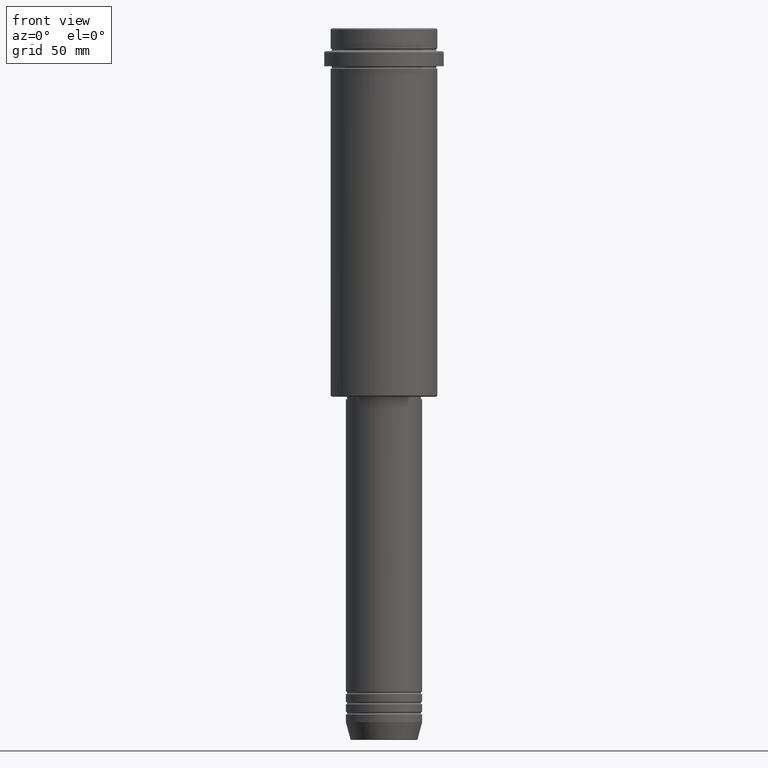
[diagram: clean part render]
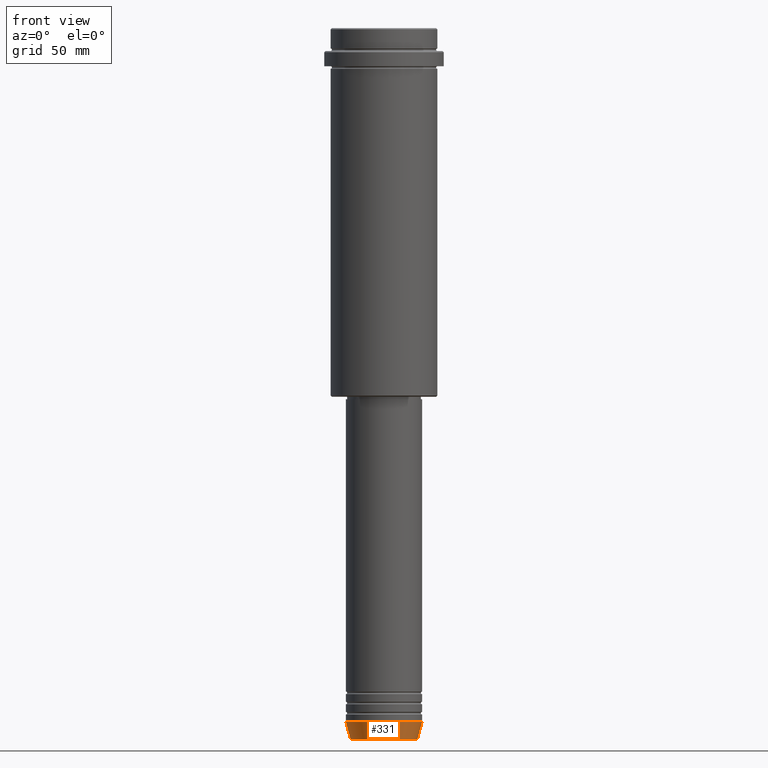
[diagram: same view with one face highlighted and labeled with its STEP entity id]
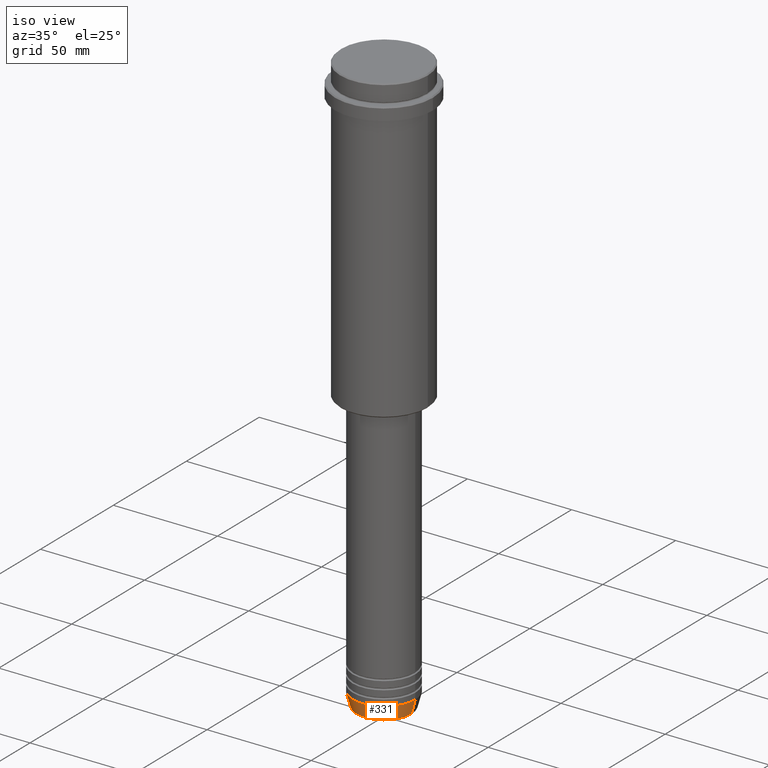
[diagram: same view with one face highlighted and labeled with its STEP entity id]
A machine part, front view. The second image highlights one B-rep face of the part: STEP entity #331.
A second angle (iso view) of the same face is appended — the face is thin or edge-on in the first view.
In plain terms, the highlighted conical surface has half-angle 15 deg.
Its self-contained STEP definition (entity closure, byte-faithful):
#9 = CIRCLE ( 'NONE', #185, 15.00000000000000000 ) ;
#24 = ORIENTED_EDGE ( 'NONE', *, *, #775, .F. ) ;
#89 = CARTESIAN_POINT ( 'NONE',  ( 0.000000000000000000, 0.000000000000000000, -273.0000000000000000 ) ) ;
#92 = AXIS2_PLACEMENT_3D ( 'NONE', #661, #112, #1096 ) ;
#112 = DIRECTION ( 'NONE',  ( -0.000000000000000000, -0.000000000000000000, 1.000000000000000000 ) ) ;
#151 = LINE ( 'NONE', #277, #1378 ) ;
#185 = AXIS2_PLACEMENT_3D ( 'NONE', #89, #1283, #634 ) ;
#213 = CARTESIAN_POINT ( 'NONE',  ( -13.22365507213718772, 1.728200442216588386E-15, -279.6294095225513274 ) ) ;
#225 = EDGE_LOOP ( 'NONE', ( #24, #1180, #1331, #1015 ) ) ;
#277 = CARTESIAN_POINT ( 'NONE',  ( -15.00000000000000000, 1.836970198721029589E-15, -273.0000000000000000 ) ) ;
#278 = EDGE_CURVE ( 'NONE', #1293, #707, #9, .T. ) ;
#331 = ADVANCED_FACE ( 'NONE', ( #451 ), #374, .T. ) ;
#374 = CONICAL_SURFACE ( 'NONE', #92, 15.00000000000000000, 0.2617993877991500740 ) ;
#419 = EDGE_CURVE ( 'NONE', #1114, #1263, #829, .T. ) ;
#451 = FACE_OUTER_BOUND ( 'NONE', #225, .T. ) ;
#454 = CARTESIAN_POINT ( 'NONE',  ( 15.00000000000000000, 0.000000000000000000, -273.0000000000000000 ) ) ;
#623 = AXIS2_PLACEMENT_3D ( 'NONE', #1174, #1161, #1413 ) ;
#634 = DIRECTION ( 'NONE',  ( 1.000000000000000000, 0.000000000000000000, 0.000000000000000000 ) ) ;
#654 = CARTESIAN_POINT ( 'NONE',  ( 15.00000000000000000, 0.000000000000000000, -273.0000000000000000 ) ) ;
#661 = CARTESIAN_POINT ( 'NONE',  ( 0.000000000000000000, 0.000000000000000000, -273.0000000000000000 ) ) ;
#707 = VERTEX_POINT ( 'NONE', #454 ) ;
#775 = EDGE_CURVE ( 'NONE', #1114, #1293, #151, .T. ) ;
#791 = DIRECTION ( 'NONE',  ( 0.2588190451025213501, 0.000000000000000000, 0.9659258262890680902 ) ) ;
#829 = CIRCLE ( 'NONE', #623, 13.22365507213718772 ) ;
#1015 = ORIENTED_EDGE ( 'NONE', *, *, #278, .F. ) ;
#1016 = LINE ( 'NONE', #654, #1103 ) ;
#1025 = DIRECTION ( 'NONE',  ( -0.2588190451025213501, 3.169619151431772337E-17, 0.9659258262890680902 ) ) ;
#1043 = CARTESIAN_POINT ( 'NONE',  ( -15.00000000000000000, 1.836970198721029589E-15, -273.0000000000000000 ) ) ;
#1045 = CARTESIAN_POINT ( 'NONE',  ( 13.22365507213718772, 0.000000000000000000, -279.6294095225513274 ) ) ;
#1096 = DIRECTION ( 'NONE',  ( 1.000000000000000000, 0.000000000000000000, 0.000000000000000000 ) ) ;
#1103 = VECTOR ( 'NONE', #791, 1000.000000000000000 ) ;
#1114 = VERTEX_POINT ( 'NONE', #213 ) ;
#1127 = EDGE_CURVE ( 'NONE', #1263, #707, #1016, .T. ) ;
#1161 = DIRECTION ( 'NONE',  ( -0.000000000000000000, -0.000000000000000000, 1.000000000000000000 ) ) ;
#1174 = CARTESIAN_POINT ( 'NONE',  ( 0.000000000000000000, 0.000000000000000000, -279.6294095225513274 ) ) ;
#1180 = ORIENTED_EDGE ( 'NONE', *, *, #419, .T. ) ;
#1263 = VERTEX_POINT ( 'NONE', #1045 ) ;
#1283 = DIRECTION ( 'NONE',  ( -0.000000000000000000, -0.000000000000000000, 1.000000000000000000 ) ) ;
#1293 = VERTEX_POINT ( 'NONE', #1043 ) ;
#1331 = ORIENTED_EDGE ( 'NONE', *, *, #1127, .T. ) ;
#1378 = VECTOR ( 'NONE', #1025, 1000.000000000000000 ) ;
#1413 = DIRECTION ( 'NONE',  ( 1.000000000000000000, 0.000000000000000000, 0.000000000000000000 ) ) ;